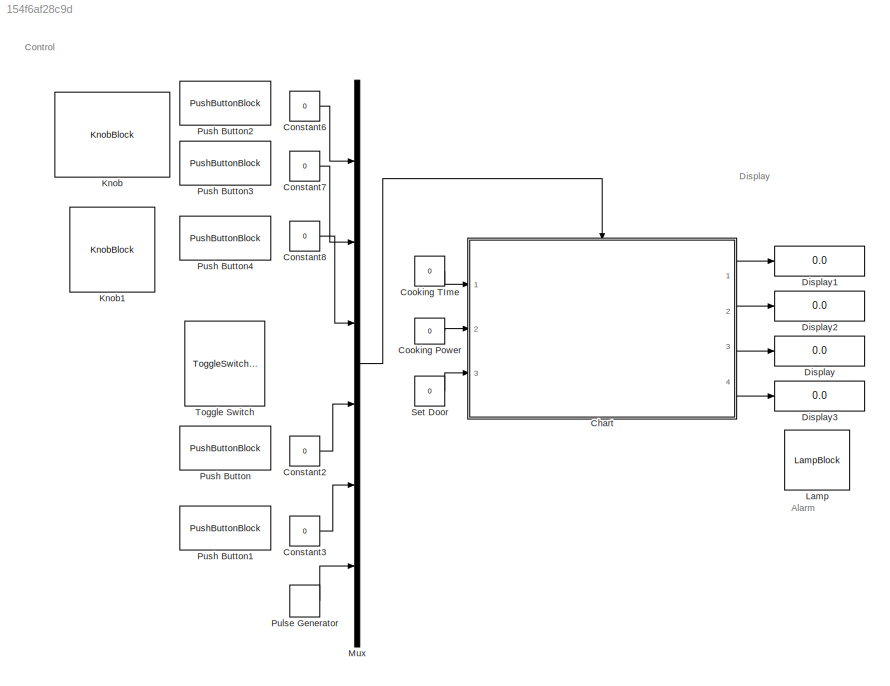
MODEL slx_154f6af28c9d
KIND model
CONFIG AbsTol = auto
CONFIG EnableMultiTasking = off
CONFIG FixedStep = 0.01
CONFIG MaxStep = auto
CONFIG MinStep = auto
CONFIG RelTol = 1e-3
CONFIG SampleTimeConstraint = Unconstrained
CONFIG Solver = FixedStepAuto
CONFIG SolverName = FixedStepAuto
CONFIG StartTime = 0.0
CONFIG StopTime = 400000
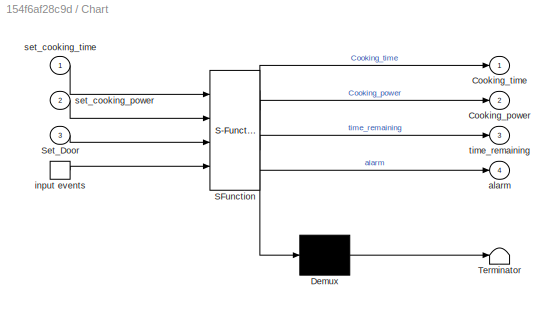
BLOCK [SubSystem] Chart
  ErrorFcn = Stateflow.Translate.translate
  PermitHierarchicalResolution = ExplicitOnly
  Ports = [3, 4, 0, 1]
  RequestExecContextInheritance = off
  SFBlockType = Chart
  TreatAsAtomicUnit = on
BLOCK [Demux] Chart/ Demux 
  Outputs = 1
  Ports = [1, 1]
BLOCK [S-Function] Chart/ SFunction 
  EnableBusSupport = on
  FunctionName = sf_sfun
  PortCounts = [4 5]
  Ports = [4, 5]
  SFcnIsStateOwnerBlock = off
  SFunctionDeploymentMode = off
  Tag = Stateflow S-Function 3
BLOCK [Terminator] Chart/ Terminator 
BLOCK [Outport] Chart/Cooking_power
  Port = 2
BLOCK [Outport] Chart/Cooking_time
BLOCK [Inport] Chart/Set_Door
  Port = 3
BLOCK [Outport] Chart/alarm
  Port = 4
BLOCK [TriggerPort] Chart/input events
  Ports = [0, 1]
  ShowOutputPort = on
  StatesWhenEnabling = held
  VariantControl = (inherit)
BLOCK [Inport] Chart/set_cooking_power
  Port = 2
BLOCK [Inport] Chart/set_cooking_time
BLOCK [Outport] Chart/time_remaining
  Port = 3
BLOCK [Constant] Constant2
  Value = 0
BLOCK [Constant] Constant3
  Value = 0
BLOCK [Constant] Constant6
  Value = 0
BLOCK [Constant] Constant7
  Value = 0
BLOCK [Constant] Constant8
  Value = 0
BLOCK [Constant] Cooking Power
  OutDataTypeStr = int64
  Value = 0
BLOCK [Constant] Cooking TIme
  OutDataTypeStr = int64
  OutMax = [1000]
  OutMin = [0]
  Value = 0
BLOCK [Display] Display
  Decimation = 1
  Ports = [1]
BLOCK [Display] Display1
  Decimation = 1
  Ports = [1]
BLOCK [Display] Display2
  Decimation = 1
  Ports = [1]
BLOCK [Display] Display3
  Decimation = 1
  Ports = [1]
BLOCK [KnobBlock] Knob
  ScaleMax = 1000
BLOCK [KnobBlock] Knob1
  ScaleMax = 800
BLOCK [LampBlock] Lamp
  LabelPosition = Hide
BLOCK [Mux] Mux
  DisplayOption = bar
  Inputs = 6
  Ports = [6, 1]
BLOCK [DiscretePulseGenerator] Pulse Generator
  Period = 1
  Ports = [0, 1]
  PulseType = Time based
  PulseWidth = 90
BLOCK [PushButtonBlock] Push Button
  ButtonText = Start_cooking
BLOCK [PushButtonBlock] Push Button1
  ButtonText = Stop
BLOCK [PushButtonBlock] Push Button2
  ButtonText = Turn_on
BLOCK [PushButtonBlock] Push Button3
  ButtonText = set_time
BLOCK [PushButtonBlock] Push Button4
  ButtonText = set_power
BLOCK [Constant] Set Door
  Value = 0
BLOCK [ToggleSwitchBlock] Toggle Switch
ANNOTATION (root): Alarm
ANNOTATION (root): Control
ANNOTATION (root): Display
LINE Chart:1 -> Display1:1
LINE Chart:2 -> Display2:1
LINE Chart:3 -> Display:1
LINE Chart:4 -> Display3:1
LINE Constant2:1 -> Mux:4
LINE Constant3:1 -> Mux:5
LINE Constant6:1 -> Mux:1
LINE Constant7:1 -> Mux:2
LINE Constant8:1 -> Mux:3
LINE Cooking Power:1 -> Chart:2
LINE Cooking TIme:1 -> Chart:1
LINE Mux:1 -> Chart:trigger
LINE Pulse Generator:1 -> Mux:6
LINE Set Door:1 -> Chart:3
CHART Chart states=9 transitions=17
  STATE_LABEL 'Timer\nen:Idle_time=0;\non pulse: time_counter();\n'
  STATE_LABEL 'time_counter'
  STATE_LABEL 'SCRIPT:\nfunction time_counter\nIdle_time =(Idle_time+1);\n\nend\n'
  STATE_LABEL 'Idle\nen:Cooking_time=0;Cooking_power=0;\nen: time_count=0;time_remaining=0;\nen: alarm=0;'
  STATE_LABEL 'cooking_time_power\nen:Idle_time=0;\non set_time:Cooking_time= set_cooking_time;\non set_power:Cooking_power= set_cooking_power\n'
  STATE_LABEL 'door_close\nen:Idle_time=0;'
  STATE_LABEL 'start_cooking\nen: time_remaining = 1;\non pulse: increase_time();\ndu:  time_remaining=  Cooking_time - time_count;\non set_time:Cooking_time= set_cooking_time;\non set_power:Cooking_power= set_cooking_power\n'
  STATE_LABEL 'increase_time'
  STATE_LABEL 'SCRIPT:\nfunction increase_time\ntime_count =(time_count+1);\n\nend\n'
  STATE_LABEL 'Cooking_finish\nen:Cooking_time=0;Cooking_power=0;\nen: time_count=0;time_remaining=0;\nen: alarm=1;'
  STATE_LABEL 'suspend_cooking'
  STATE_LABEL '[Idle_time>300]'
  STATE_LABEL '[Set_Door==1]'
  STATE_LABEL '[Set_Door==0]'
  STATE_LABEL 'Turn_on'
  STATE_LABEL '[Set_Door==1]'
  STATE_LABEL 'Stop'
  STATE_LABEL 'Stop'
  STATE_LABEL 'Stop'
  STATE_LABEL 'Stop'
  STATE_LABEL '[Idle_time>300]'
  STATE_LABEL 'Start_cooking'
  STATE_LABEL '[set_cooking_time==0||set_cooking_power==0]'
  STATE_LABEL '[time_remaining<1]'
  STATE_LABEL '[Set_Door==0]'
  STATE_LABEL 'Stop'
  STATE_LABEL 'time_counter'
  STATE_LABEL 'SCRIPT:\nfunction time_counter\nIdle_time =(Idle_time+1);\n\nend\n'
  STATE_LABEL 'Idle\nen:Cooking_time=0;Cooking_power=0;\nen: time_count=0;time_remaining=0;\nen: alarm=0;'
  STATE_LABEL 'cooking_time_power\nen:Idle_time=0;\non set_time:Cooking_time= set_cooking_time;\non set_power:Cooking_power= set_cooking_power\n'
  STATE_LABEL 'door_close\nen:Idle_time=0;'
  STATE_LABEL 'start_cooking\nen: time_remaining = 1;\non pulse: increase_time();\ndu:  time_remaining=  Cooking_time - time_count;\non set_time:Cooking_time= set_cooking_time;\non set_power:Cooking_power= set_cooking_power\n'
  STATE_LABEL 'increase_time'
  STATE_LABEL 'SCRIPT:\nfunction increase_time\ntime_count =(time_count+1);\n\nend\n'
  STATE_LABEL 'increase_time'
  STATE_LABEL 'SCRIPT:\nfunction increase_time\ntime_count =(time_count+1);\n\nend\n'
  STATE_LABEL 'Cooking_finish\nen:Cooking_time=0;Cooking_power=0;\nen: time_count=0;time_remaining=0;\nen: alarm=1;'
  STATE_LABEL 'suspend_cooking'
CHART  states=0 transitions=0
